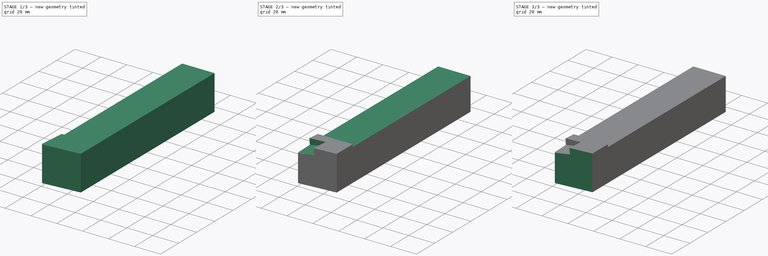
[diagram: build sequence overview — one tinted view per stage of 3, left to right]
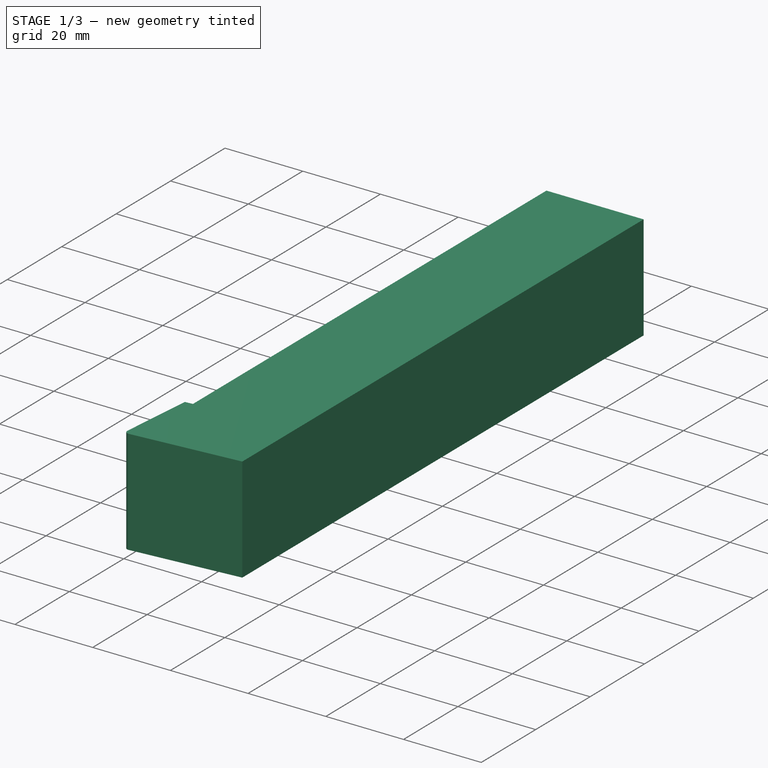
[diagram: stage 1 of 3 — iso view after this stage's code; geometry added in this stage tinted green]
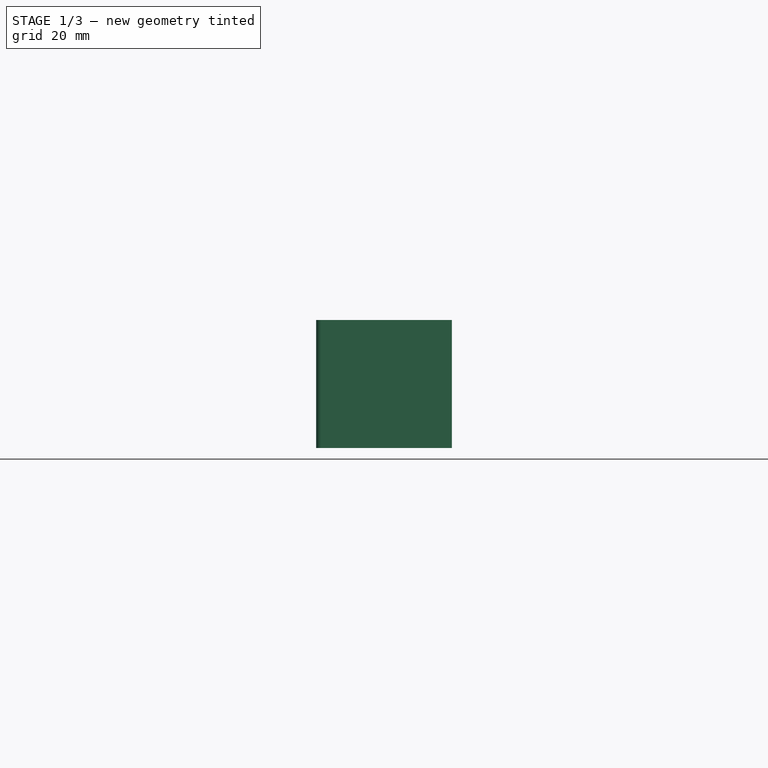
[diagram: stage 1 of 3 — front view after this stage's code; geometry added in this stage tinted green]
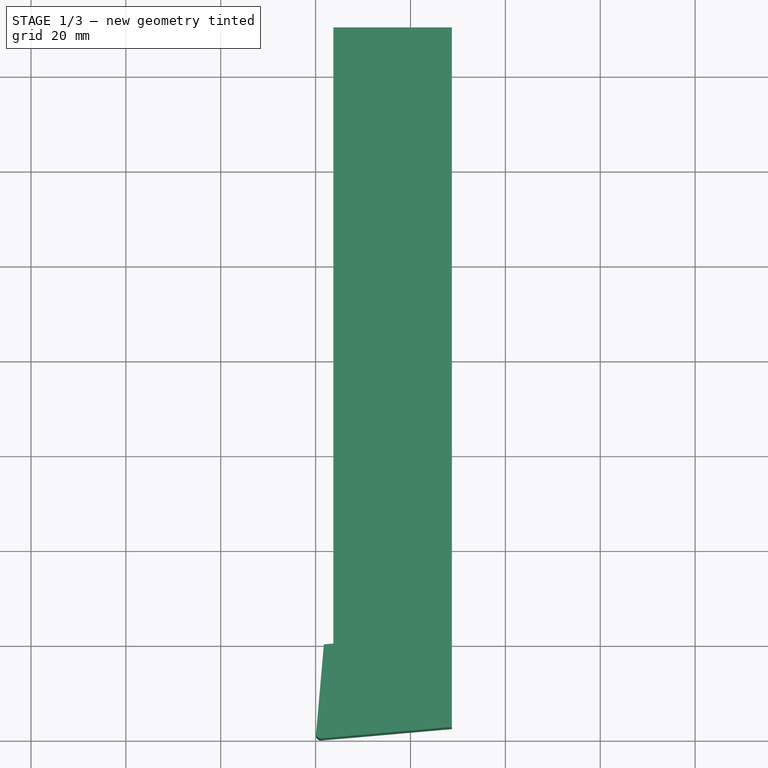
[diagram: stage 1 of 3 — top view after this stage's code; geometry added in this stage tinted green]
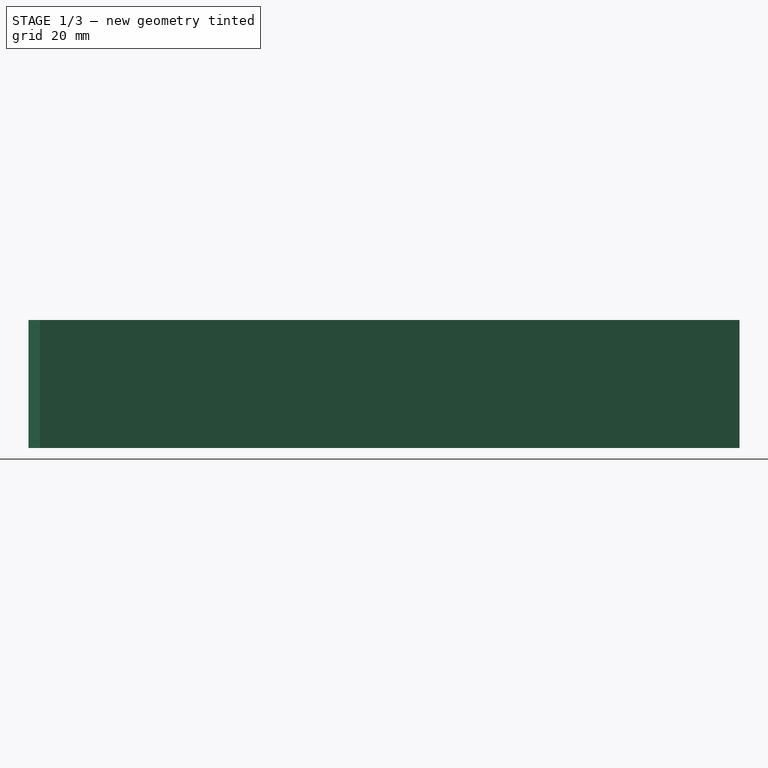
[diagram: stage 1 of 3 — right view after this stage's code; geometry added in this stage tinted green]
FCSTD DOCUMENT  (FreeCAD 0.19R)
Label: DCLNL
License: All rights reserved
LicenseURL: http://en.wikipedia.org/wiki/All_rights_reserved
objects: Sketcher::SketchObject×5, PartDesign::Pocket×4, PartDesign::Fillet×2, PartDesign::CoordinateSystem×2, PartDesign::Pad×1, PartDesign::Plane×1, PartDesign::Body×1
note: 23 computed .brp shape members not serialized (recipe doc carries the construction recipe); baked Part::Feature solids carry a one-line shape summary decoded from their .brp

FEATURE [Sketcher::SketchObject] Sketch
  FullyConstrained = true
  MapMode = 5
  Support = -> [XY_Plane]
  sketch-geometry (6):
    g0: LineSegment StartX=0 StartY=0 StartZ=0 EndX=1.74311 EndY=19.9239 EndZ=0
    g1: LineSegment StartX=1.74311 StartY=19.9239 StartZ=0 EndX=3.7355 EndY=20.0982 EndZ=0
    g2: LineSegment StartX=3.7355 StartY=20.0982 StartZ=0 EndX=3.7355 EndY=150 EndZ=0
    g3: LineSegment StartX=3.7355 StartY=150 StartZ=0 EndX=28.7355 EndY=150 EndZ=0
    g4: LineSegment StartX=28.7355 StartY=150 StartZ=0 EndX=28.7355 EndY=2.51403 EndZ=0
    g5: LineSegment StartX=28.7355 StartY=2.51403 StartZ=0 EndX=0 EndY=0 EndZ=0
  constraints (17):
    c: Coincident(g0,g1)
    c: Coincident(g1,g2)
    c: Vertical(g2)
    c: Coincident(g2,g3)
    c: Coincident(g3,g4)
    c: Coincident(g4,g5)
    c: Coincident(g5,g0)
    c: Coincident(g5,g-1)
    c: Angle(g5,g0) = 1.39626
    c: Angle(g0,g-2) = 0.0872665
    c: Distance(g0) = 20
    c: Parallel(g5,g1)
    c: Distance(g1) = 2
    c: Distance(g1,g4) = 25
    c: Vertical(g4)
    c: Horizontal(g3)
    c: DistanceY(g-1,g2) = 150
FEATURE [PartDesign::Pad] Pad
  Direction = (1,1,1)
  Length = 27
  Length2 = 100
  Profile = -> Sketch
  Type = 0
FEATURE [PartDesign::Fillet] Fillet
  Base = -> Pad [Edge1]
  BaseFeature = -> Pad
  Radius = 1
  SupportTransform = false
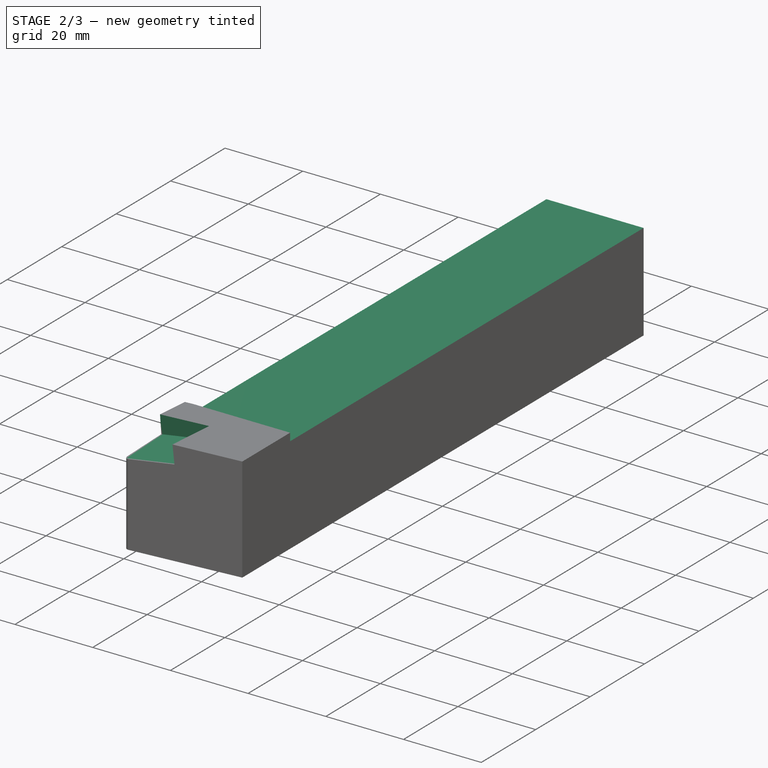
[diagram: stage 2 of 3 — iso view after this stage's code; geometry added in this stage tinted green]
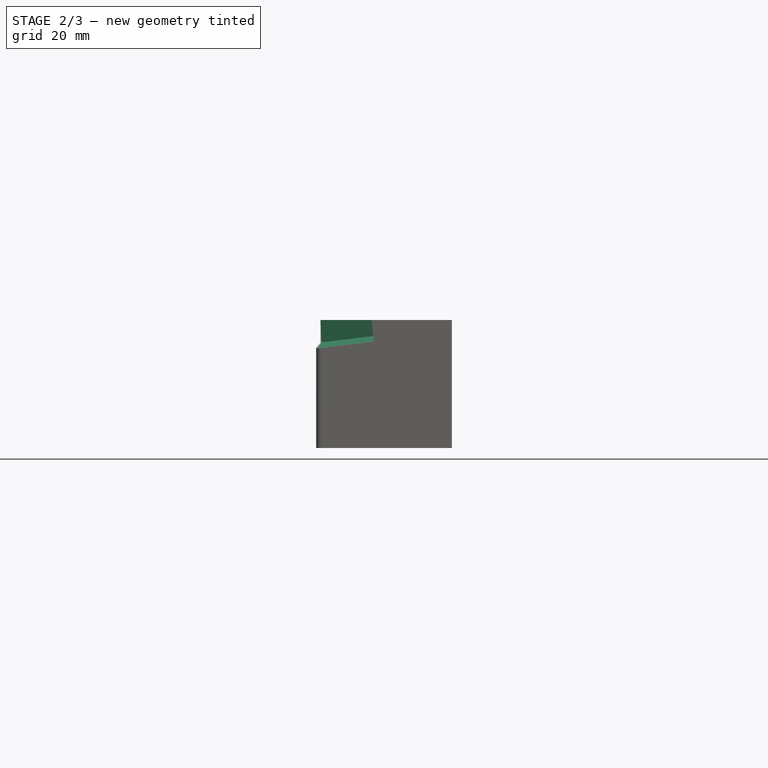
[diagram: stage 2 of 3 — front view after this stage's code; geometry added in this stage tinted green]
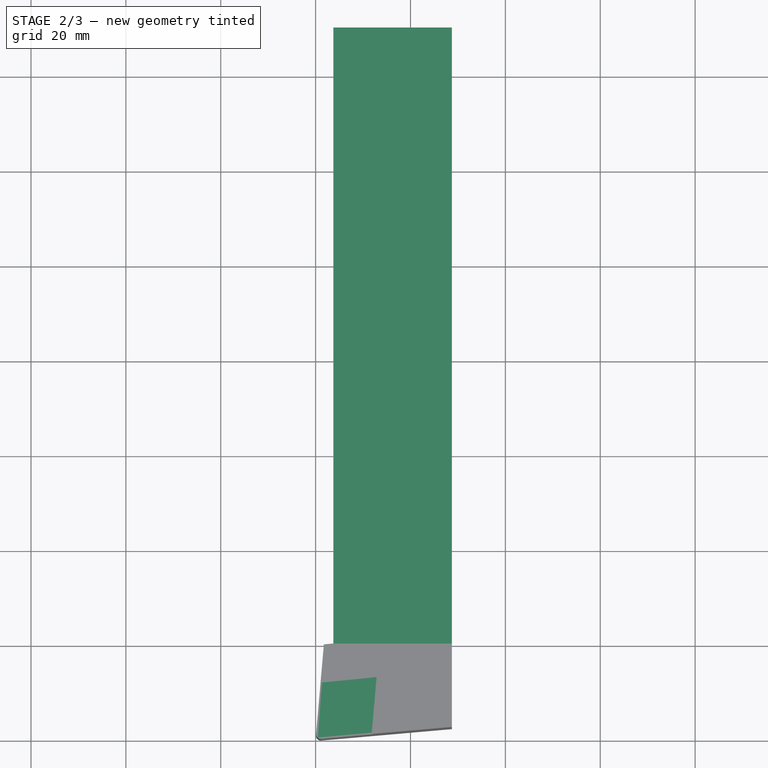
[diagram: stage 2 of 3 — top view after this stage's code; geometry added in this stage tinted green]
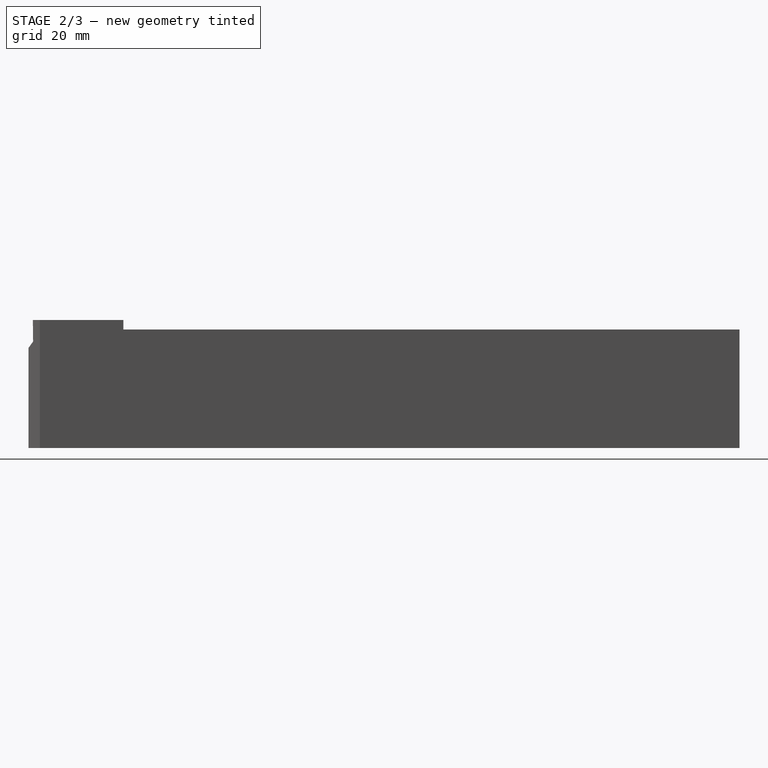
[diagram: stage 2 of 3 — right view after this stage's code; geometry added in this stage tinted green]
FEATURE [Sketcher::SketchObject] Sketch001
  ExternalGeometry = -> [Pad]
  FullyConstrained = true
  MapMode = 5
  Placement = pos=(0,0,27) rot=(0,0,1;0rad)
  Support = -> [Pad]
  sketch-geometry (4):
    g0: LineSegment StartX=3.7355 StartY=150 StartZ=0 EndX=28.7355 EndY=150 EndZ=0
    g1: LineSegment StartX=28.7355 StartY=150 StartZ=0 EndX=28.7355 EndY=20.0982 EndZ=0
    g2: LineSegment StartX=28.7355 StartY=20.0982 StartZ=0 EndX=3.7355 EndY=20.0982 EndZ=0
    g3: LineSegment StartX=3.7355 StartY=20.0982 StartZ=0 EndX=3.7355 EndY=150 EndZ=0
  constraints (10):
    c: Coincident(g0,g1)
    c: Coincident(g1,g2)
    c: Coincident(g2,g3)
    c: Coincident(g3,g0)
    c: Horizontal(g0)
    c: Horizontal(g2)
    c: Vertical(g1)
    c: Vertical(g3)
    c: Coincident(g2,g-3)
    c: Coincident(g0,g-4)
FEATURE [PartDesign::Pocket] Pocket
  BaseFeature = -> Fillet
  Length = 2
  Length2 = 100
  Profile = -> Sketch001
  Type = 0
FEATURE [PartDesign::CoordinateSystem] Local_CS
  AttacherType = Attacher::AttachEngine3D
  AttachmentOffset = pos=(0,0,-2) rot=(0.591586,-0.645603,-0.482932;0.169018rad)
  MapMode = 5
  Placement = pos=(0,0,25) rot=(0.591586,-0.645603,-0.482932;0.169018rad)
  Support = -> [Pocket]
FEATURE [PartDesign::Plane] DatumPlane
  Length = 97.0926
  MapMode = 5
  Placement = pos=(4e-16,0,25) rot=(0.591586,-0.645603,-0.482932;0.169018rad)
  ResizeMode = 0
  Support = -> [Local_CS]
  Width = 206.275
FEATURE [Sketcher::SketchObject] Sketch002
  FullyConstrained = true
  MapMode = 5
  Placement = pos=(9e-16,0,25) rot=(0.591586,-0.645603,-0.482932;0.169018rad)
  Support = -> [DatumPlane]
  sketch-geometry (4):
    g0: LineSegment StartX=0 StartY=0 StartZ=0 EndX=0 EndY=12 EndZ=0
    g1: LineSegment StartX=0 StartY=12 StartZ=0 EndX=11.8177 EndY=14.0838 EndZ=0
    g2: LineSegment StartX=11.8177 StartY=14.0838 StartZ=0 EndX=11.8177 EndY=2.08378 EndZ=0
    g3: LineSegment StartX=11.8177 StartY=2.08378 StartZ=0 EndX=0 EndY=0 EndZ=0
  constraints (11):
    c: Coincident(g0,g1)
    c: Coincident(g1,g2)
    c: Coincident(g2,g3)
    c: Coincident(g3,g0)
    c: Coincident(g3,g-1)
    c: PointOnObject(g0,g-2)
    c: Parallel(g0,g2)
    c: Parallel(g1,g3)
    c: Equal(g1,g0)
    c: Distance(g0) = 12
    c: Angle(g3,g0) = 1.39626
FEATURE [PartDesign::Pocket] Pocket001
  BaseFeature = -> Pocket
  Length = 4
  Length2 = 10
  Profile = -> Sketch002
  Type = 4
FEATURE [Sketcher::SketchObject] Sketch003
  ExternalGeometry = -> [Pocket001]
  FullyConstrained = true
  MapMode = 5
  Placement = pos=(-2.3353,-1.97051,20.5004) rot=(0.646526,-0.762017,-0.036539;0.14806rad)
  Support = -> [Pocket001]
  sketch-geometry (4):
    g0: LineSegment StartX=0 StartY=13.9907 StartZ=0 EndX=15.6614 EndY=15.5333 EndZ=0
    g1: LineSegment StartX=15.6614 StartY=15.5333 StartZ=0 EndX=14.583 EndY=1.43636 EndZ=0
    g2: LineSegment StartX=14.583 StartY=1.43636 StartZ=0 EndX=0 EndY=0 EndZ=0
    g3: LineSegment StartX=0 StartY=0 StartZ=0 EndX=0 EndY=13.9907 EndZ=0
  constraints (10):
    c: Coincident(g0,g1)
    c: Coincident(g1,g2)
    c: Coincident(g2,g3)
    c: Vertical(g3)
    c: Coincident(g3,g0)
    c: Coincident(g2,g-1)
    c: PointOnObject(g-3,g0)
    c: Coincident(g0,g-4)
    c: PointOnObject(g-4,g1)
    c: Parallel(g2,g0)
FEATURE [PartDesign::Pocket] Pocket002
  BaseFeature = -> Pocket001
  Length = 5
  Length2 = 100
  Profile = -> Sketch003
  Reversed = true
  Type = 0
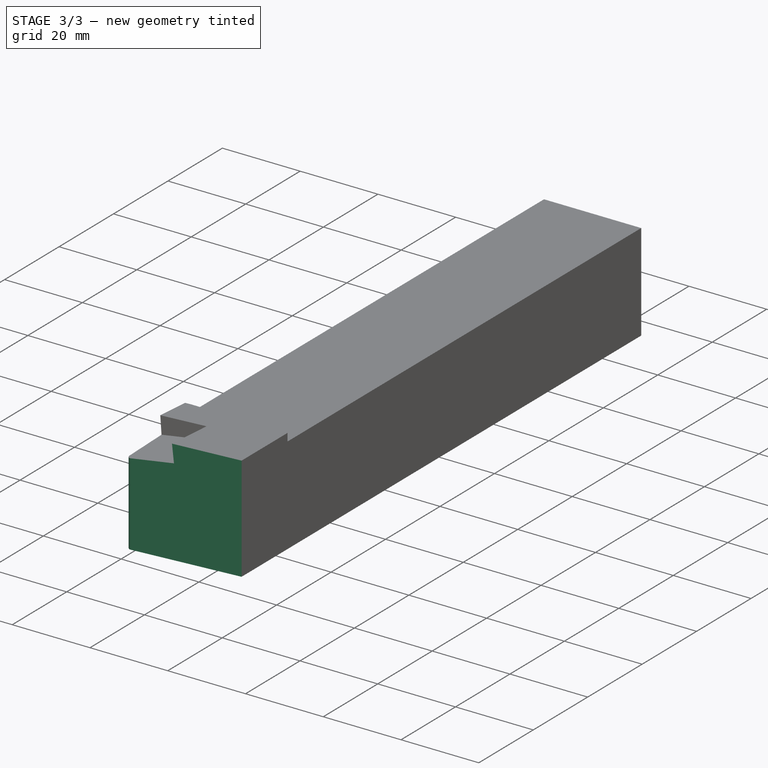
[diagram: stage 3 of 3 — iso view after this stage's code; geometry added in this stage tinted green]
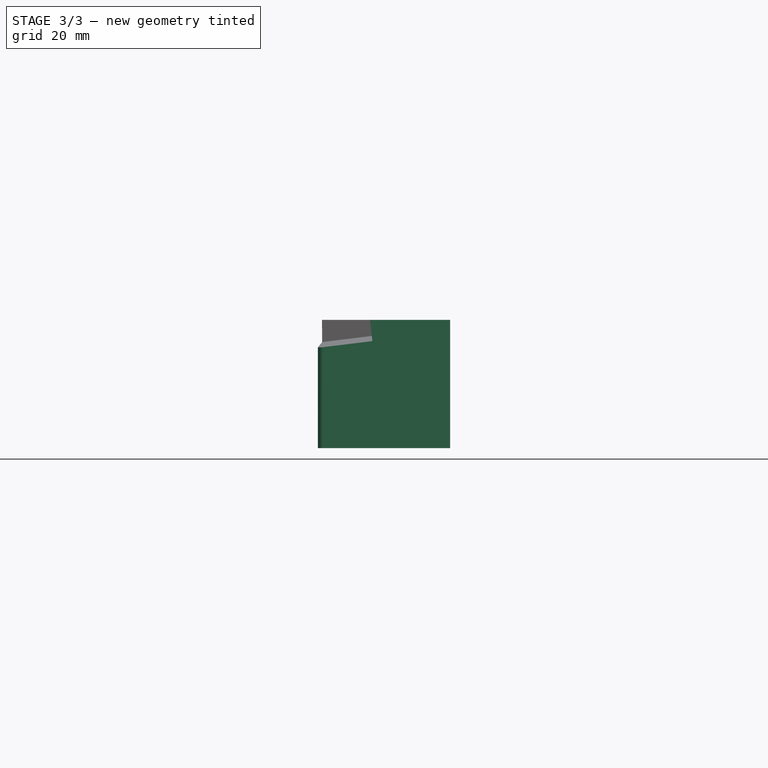
[diagram: stage 3 of 3 — front view after this stage's code; geometry added in this stage tinted green]
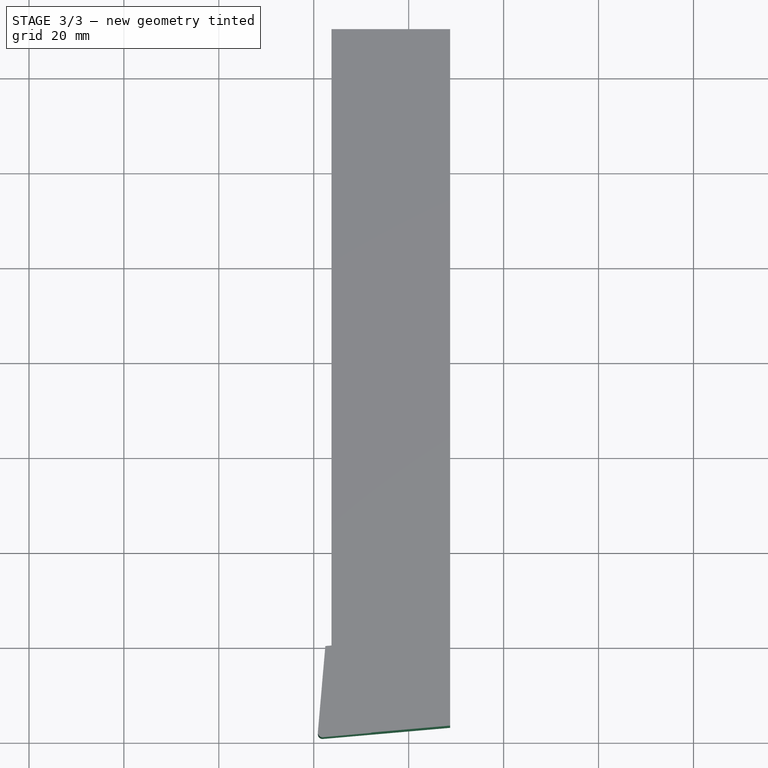
[diagram: stage 3 of 3 — top view after this stage's code; geometry added in this stage tinted green]
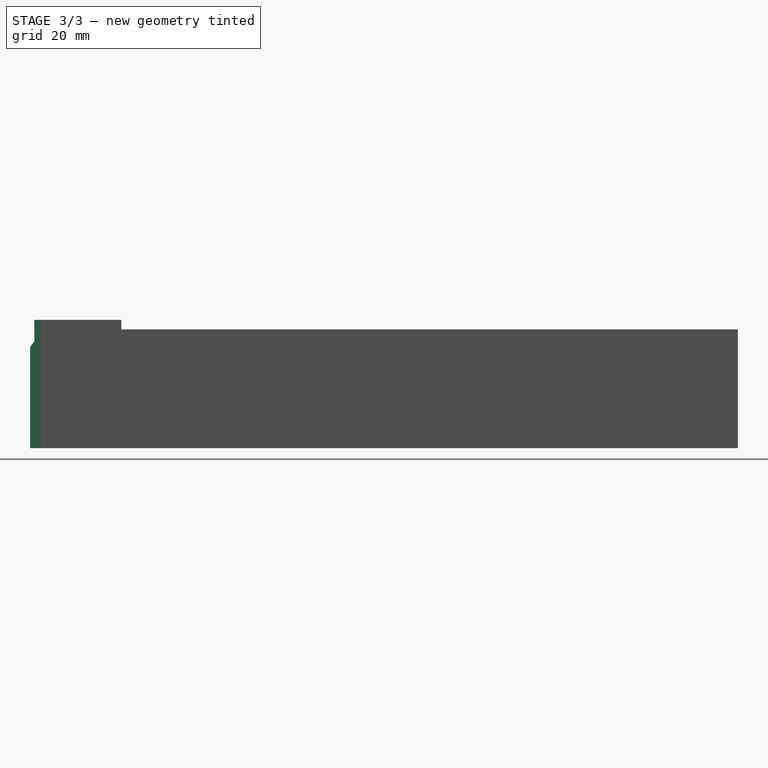
[diagram: stage 3 of 3 — right view after this stage's code; geometry added in this stage tinted green]
FEATURE [Sketcher::SketchObject] Sketch004
  ExternalGeometry = -> [Pocket002]
  FullyConstrained = true
  MapMode = 5
  Placement = pos=(0,0,27) rot=(0,0,1;0rad)
  Support = -> [Pocket002]
  sketch-geometry (6):
    g0: LineSegment StartX=28.7355 StartY=2.51403 StartZ=0 EndX=28.7355 EndY=3.21403 EndZ=0
    g1: LineSegment StartX=28.7355 StartY=3.21403 StartZ=0 EndX=0.759051 EndY=0.766408 EndZ=0
    g2: LineSegment StartX=0.759051 StartY=0.766408 StartZ=0 EndX=2.44045 EndY=19.9849 EndZ=0
    g3: LineSegment StartX=2.44045 StartY=19.9849 StartZ=0 EndX=1.74311 EndY=19.9239 EndZ=0
    g4: LineSegment StartX=1.74311 StartY=19.9239 StartZ=0 EndX=0 EndY=0 EndZ=0
    g5: LineSegment StartX=0 StartY=-4e-16 StartZ=0 EndX=28.7355 EndY=2.51403 EndZ=0
  constraints (16):
    c: Coincident(g0,g1)
    c: Coincident(g1,g2)
    c: Coincident(g2,g3)
    c: Coincident(g3,g4)
    c: Coincident(g4,g5)
    c: Coincident(g5,g0)
    c: Vertical(g0)
    c: Coincident(g3,g-4)
    c: Parallel(g4,g-4)
    c: Parallel(g2,g4)
    c: Coincident(g0,g-3)
    c: Parallel(g1,g5)
    c: Parallel(g5,g-3)
    c: Equal(g0,g3)
    c: Distance(g0) = 0.7
    c: PointOnObject(g2,g-5)
FEATURE [PartDesign::Pocket] Pocket003
  BaseFeature = -> Pocket002
  Length = 5
  Length2 = 100
  Profile = -> Sketch004
  Type = 1
FEATURE [PartDesign::Fillet] Fillet001
  Base = -> Pocket003 [Edge11]
  BaseFeature = -> Pocket003
  Radius = 1
  SupportTransform = false
FEATURE [PartDesign::CoordinateSystem] Local_CS001
  AttacherType = Attacher::AttachEngine3D
  AttachmentOffset = pos=(0,0,25) rot=(0,0,1;0rad)
  MapMode = 2
  Placement = pos=(0,0,25) rot=(0,0,1;0rad)
  Support = -> [X_Axis]
FEATURE [PartDesign::Body] Body
  Group = -> [Sketch,Pad,Fillet,Sketch001,Pocket,Local_CS,DatumPlane,Sketch002,Pocket001,Sketch003,Pocket002,Sketch004,Pocket003,Fillet001,Local_CS001]
  Origin = -> Origin
  Tip = -> Fillet001
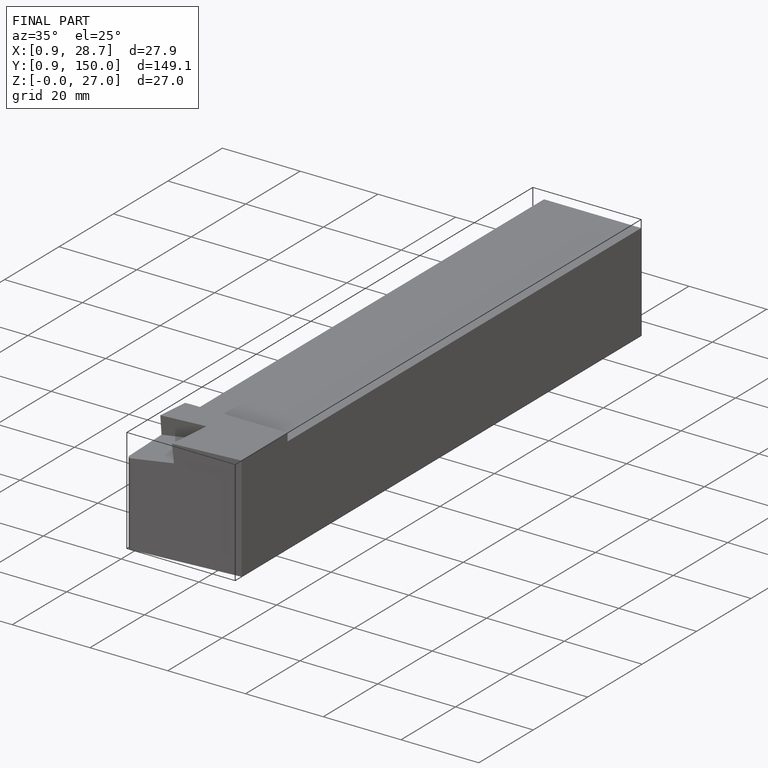
[diagram: finished part — iso view with bounding-box wireframe]
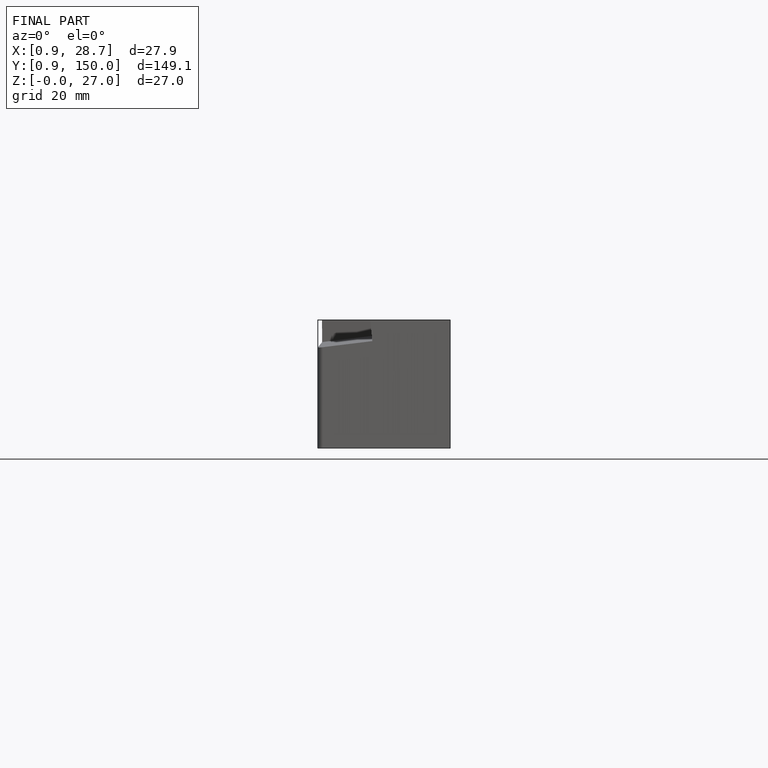
[diagram: finished part — front view with bounding-box wireframe]
